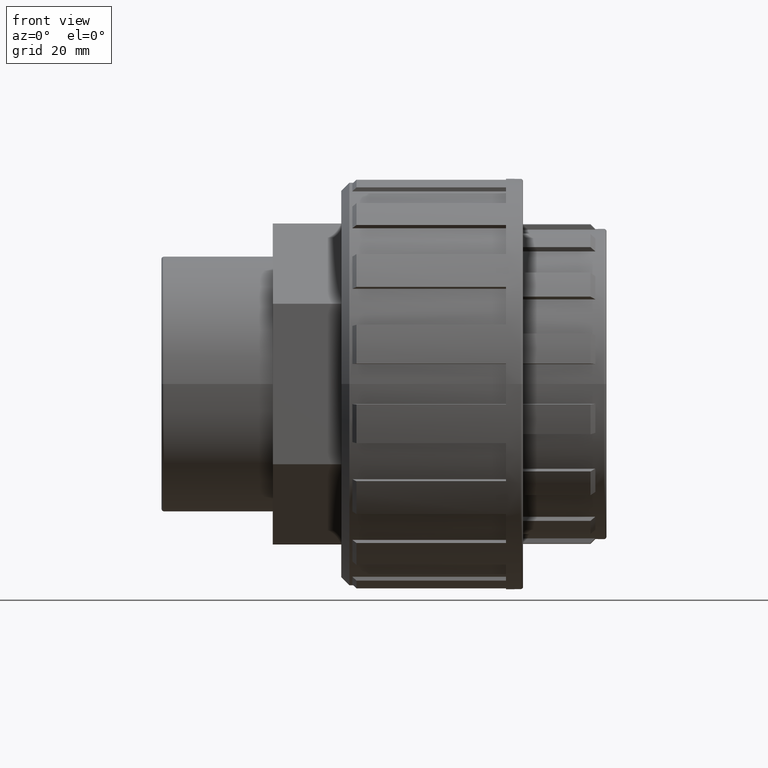
[diagram: clean part render]
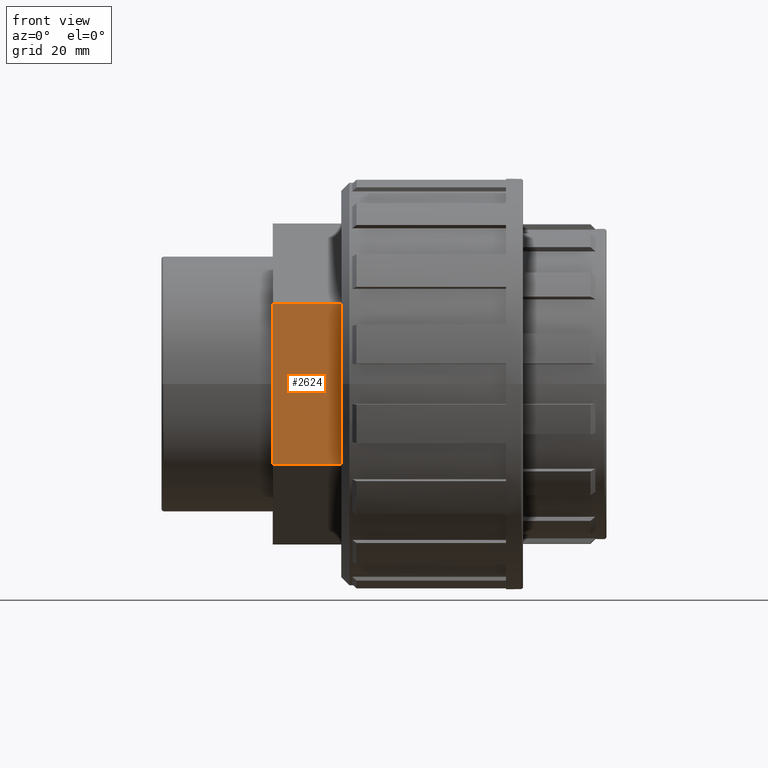
[diagram: same view with one face highlighted and labeled with its STEP entity id]
A machine part, front view. The second image highlights one B-rep face of the part: STEP entity #2624.
In plain terms, the highlighted planar face has unit normal (0, -1, 0).
Its self-contained STEP definition (entity closure, byte-faithful):
#238=FACE_OUTER_BOUND('',#386,.T.);
#386=EDGE_LOOP('',(#1752,#1753,#1754,#1755));
#555=LINE('',#3900,#813);
#564=LINE('',#3920,#822);
#566=LINE('',#3923,#824);
#567=LINE('',#3924,#825);
#813=VECTOR('',#3064,16.);
#822=VECTOR('',#3079,16.);
#824=VECTOR('',#3083,37.5277674973257);
#825=VECTOR('',#3084,37.5277674973257);
#1069=VERTEX_POINT('',#3894);
#1071=VERTEX_POINT('',#3898);
#1078=VERTEX_POINT('',#3917);
#1079=VERTEX_POINT('',#3919);
#1342=EDGE_CURVE('',#1071,#1069,#555,.T.);
#1351=EDGE_CURVE('',#1079,#1078,#564,.T.);
#1353=EDGE_CURVE('',#1069,#1078,#566,.T.);
#1354=EDGE_CURVE('',#1071,#1079,#567,.T.);
#1752=ORIENTED_EDGE('',*,*,#1353,.F.);
#1753=ORIENTED_EDGE('',*,*,#1342,.F.);
#1754=ORIENTED_EDGE('',*,*,#1354,.T.);
#1755=ORIENTED_EDGE('',*,*,#1351,.T.);
#2534=PLANE('',#2774);
#2624=ADVANCED_FACE('',(#238),#2534,.T.);
#2774=AXIS2_PLACEMENT_3D('',#3922,#3081,#3082);
#3064=DIRECTION('',(1.,1.85037170770858E-16,0.));
#3079=DIRECTION('',(1.,1.85037170770858E-16,0.));
#3081=DIRECTION('center_axis',(1.85037170770858E-16,-1.,1.53837014910685E-15));
#3082=DIRECTION('ref_axis',(0.,-1.4210854715202E-15,-1.));
#3083=DIRECTION('',(2.82594011851131E-31,-1.53837014910685E-15,-1.));
#3084=DIRECTION('',(2.82594011851131E-31,-1.53837014910685E-15,-1.));
#3894=CARTESIAN_POINT('',(-9.99999999999999,-32.5,18.7638837486629));
#3898=CARTESIAN_POINT('',(-26.,-32.5,18.7638837486629));
#3900=CARTESIAN_POINT('',(-26.,-32.5,18.7638837486629));
#3917=CARTESIAN_POINT('',(-9.99999999999999,-32.5,-18.7638837486628));
#3919=CARTESIAN_POINT('',(-26.,-32.5,-18.7638837486628));
#3920=CARTESIAN_POINT('',(-26.,-32.5,-18.7638837486628));
#3922=CARTESIAN_POINT('Origin',(-26.,-32.5,18.7638837486629));
#3923=CARTESIAN_POINT('',(-9.99999999999999,-32.5,9.38194187433144));
#3924=CARTESIAN_POINT('',(-26.,-32.5,18.7638837486629));